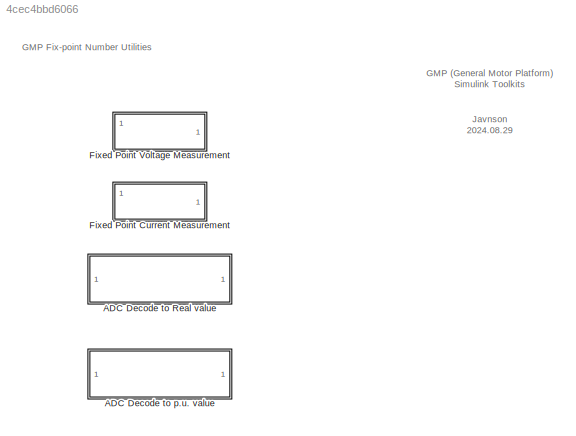
MODEL slx_4cec4bbd6066
KIND library
CONFIG AbsTol = auto
CONFIG EnableMultiTasking = off
CONFIG FixedStep = auto
CONFIG MaxStep = auto
CONFIG MinStep = auto
CONFIG RelTol = 1e-3
CONFIG SampleTimeConstraint = Unconstrained
CONFIG SolverName = VariableStepAuto
CONFIG StartTime = 0.0
CONFIG StopTime = 10.0
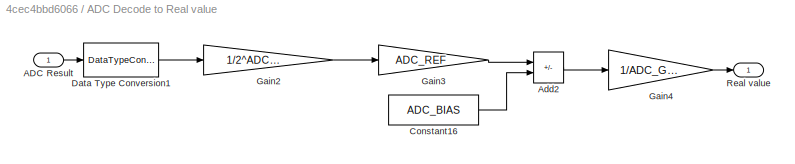
BLOCK [SubSystem] ADC Decode to Real value
  CopyFcn = set_param(gcbh,'LinkStatus','none');
BLOCK [Inport] ADC Decode to Real value/ADC Result
BLOCK [Sum] ADC Decode to Real value/Add2
  IconShape = rectangular
  Inputs = +-
BLOCK [Constant] ADC Decode to Real value/Constant16
  Value = ADC_BIAS
BLOCK [DataTypeConversion] ADC Decode to Real value/Data Type Conversion1
  OutDataTypeStr = double
  RndMeth = Floor
  SaturateOnIntegerOverflow = off
BLOCK [Gain] ADC Decode to Real value/Gain2
  Gain = 1/2^ADC_BIT
BLOCK [Gain] ADC Decode to Real value/Gain3
  Gain = ADC_REF
BLOCK [Gain] ADC Decode to Real value/Gain4
  Gain = 1/ADC_GAIN
BLOCK [Outport] ADC Decode to Real value/Real value
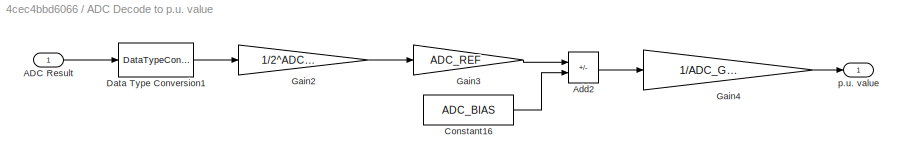
BLOCK [SubSystem] ADC Decode to p.u. value
  AncestorBlock = fp_utilities/ADC Decode to Real value
  CopyFcn = set_param(gcbh,'LinkStatus','none');
BLOCK [Inport] ADC Decode to p.u. value/ADC Result
BLOCK [Sum] ADC Decode to p.u. value/Add2
  IconShape = rectangular
  Inputs = +-
BLOCK [Constant] ADC Decode to p.u. value/Constant16
  Value = ADC_BIAS
BLOCK [DataTypeConversion] ADC Decode to p.u. value/Data Type Conversion1
  OutDataTypeStr = double
  RndMeth = Floor
  SaturateOnIntegerOverflow = off
BLOCK [Gain] ADC Decode to p.u. value/Gain2
  Gain = 1/2^ADC_BIT
BLOCK [Gain] ADC Decode to p.u. value/Gain3
  Gain = ADC_REF
BLOCK [Gain] ADC Decode to p.u. value/Gain4
  Gain = 1/ADC_GAIN/ADC_REF
BLOCK [Outport] ADC Decode to p.u. value/p.u. value
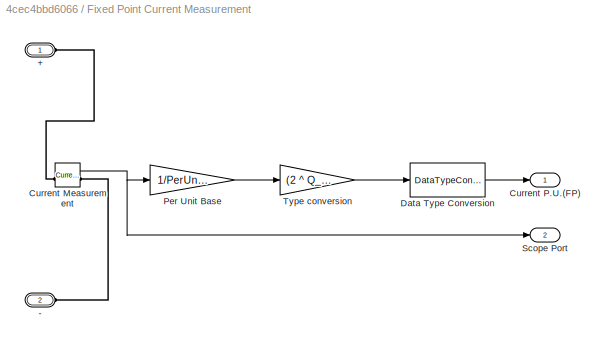
BLOCK [SubSystem] Fixed Point Current Measurement
  CopyFcn = set_param(gcbh,'LinkStatus','none');
BLOCK [PMIOPort] Fixed Point Current Measurement/+
  Side = Left
BLOCK [PMIOPort] Fixed Point Current Measurement/-
  Port = 2
  Side = Left
BLOCK [Reference] Fixed Point Current Measurement/Current Measurement  REF=spsCurrentMeasurementLib/Current Measurement
  LibrarySourceBlock = sps_lib/Sensors and Measurements/Current Measurement
  SourceBlock = spsCurrentMeasurementLib/Current Measurement
  SourceType = Current Measurement
  UserDataPersistent = on
BLOCK [Outport] Fixed Point Current Measurement/Current P.U.(FP)
BLOCK [DataTypeConversion] Fixed Point Current Measurement/Data Type Conversion
  ConvertRealWorld = Stored Integer (SI)
  LockScale = on
  OutDataTypeStr = int32
  RndMeth = Floor
  SaturateOnIntegerOverflow = off
BLOCK [Gain] Fixed Point Current Measurement/Per Unit Base
  Gain = 1/PerUnit_Base
BLOCK [Outport] Fixed Point Current Measurement/Scope Port
  Port = 2
BLOCK [Gain] Fixed Point Current Measurement/Type conversion
  Gain = (2 ^ Q_VALUE)
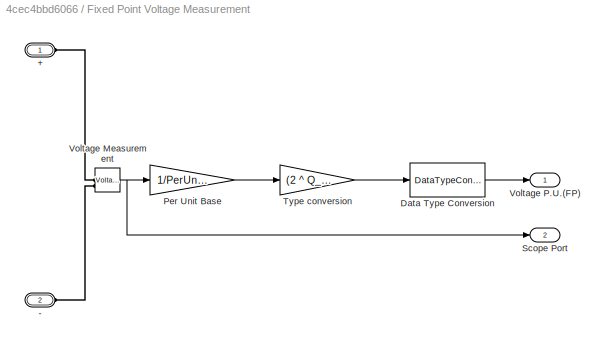
BLOCK [SubSystem] Fixed Point Voltage Measurement
BLOCK [PMIOPort] Fixed Point Voltage Measurement/+
  Side = Left
BLOCK [PMIOPort] Fixed Point Voltage Measurement/-
  Port = 2
  Side = Left
BLOCK [DataTypeConversion] Fixed Point Voltage Measurement/Data Type Conversion
  ConvertRealWorld = Stored Integer (SI)
  LockScale = on
  OutDataTypeStr = int32
  RndMeth = Floor
  SaturateOnIntegerOverflow = off
BLOCK [Gain] Fixed Point Voltage Measurement/Per Unit Base
  Gain = 1/PerUnit_Base
BLOCK [Outport] Fixed Point Voltage Measurement/Scope Port
  Port = 2
BLOCK [Gain] Fixed Point Voltage Measurement/Type conversion
  Gain = (2 ^ Q_VALUE)
BLOCK [Reference] Fixed Point Voltage Measurement/Voltage Measurement  REF=spsVoltageMeasurementLib/Voltage Measurement
  LibrarySourceBlock = sps_lib/Sensors and Measurements/Voltage Measurement
  SourceBlock = spsVoltageMeasurementLib/Voltage Measurement
  SourceType = Voltage Measurement
  UserDataPersistent = on
BLOCK [Outport] Fixed Point Voltage Measurement/Voltage P.U.(FP)
ANNOTATION (root): GMP (General Motor Platform) Simulink Toolkits
ANNOTATION (root): GMP Fix-point Number Utilities
ANNOTATION (root): Javnson 2024.08.29
LINE ADC Decode to Real value/ADC Result:1 -> ADC Decode to Real value/Data Type Conversion1:1
LINE ADC Decode to Real value/Add2:1 -> ADC Decode to Real value/Gain4:1
LINE ADC Decode to Real value/Constant16:1 -> ADC Decode to Real value/Add2:2
LINE ADC Decode to Real value/Data Type Conversion1:1 -> ADC Decode to Real value/Gain2:1
LINE ADC Decode to Real value/Gain2:1 -> ADC Decode to Real value/Gain3:1
LINE ADC Decode to Real value/Gain3:1 -> ADC Decode to Real value/Add2:1
LINE ADC Decode to Real value/Gain4:1 -> ADC Decode to Real value/Real value:1
NET Fixed Point Current Measurement/Current Measurement:1 -> Fixed Point Current Measurement/Per Unit Base:1, Fixed Point Current Measurement/Scope Port:1
LINE Fixed Point Current Measurement/Data Type Conversion:1 -> Fixed Point Current Measurement/Current P.U.(FP):1
LINE Fixed Point Current Measurement/Per Unit Base:1 -> Fixed Point Current Measurement/Type conversion:1
LINE Fixed Point Current Measurement/Type conversion:1 -> Fixed Point Current Measurement/Data Type Conversion:1
LINE Fixed Point Voltage Measurement/Data Type Conversion:1 -> Fixed Point Voltage Measurement/Voltage P.U.(FP):1
LINE Fixed Point Voltage Measurement/Per Unit Base:1 -> Fixed Point Voltage Measurement/Type conversion:1
LINE Fixed Point Voltage Measurement/Type conversion:1 -> Fixed Point Voltage Measurement/Data Type Conversion:1
NET Fixed Point Voltage Measurement/Voltage Measurement:1 -> Fixed Point Voltage Measurement/Per Unit Base:1, Fixed Point Voltage Measurement/Scope Port:1
PLINE Fixed Point Current Measurement/+:RConn1 -- Fixed Point Current Measurement/Current Measurement:LConn1
PLINE Fixed Point Current Measurement/-:RConn1 -- Fixed Point Current Measurement/Current Measurement:RConn1
PLINE Fixed Point Voltage Measurement/+:RConn1 -- Fixed Point Voltage Measurement/Voltage Measurement:LConn1
PLINE Fixed Point Voltage Measurement/-:RConn1 -- Fixed Point Voltage Measurement/Voltage Measurement:LConn2
note: NET lines group one-source signal fan-out (src -> all destinations, sorted); 1:1 wires keep LINE
